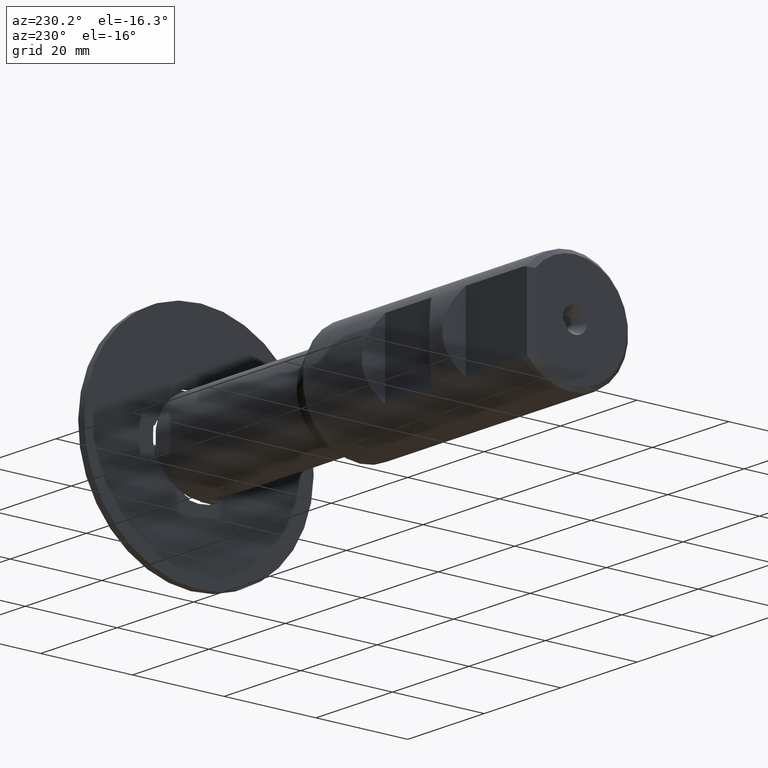
[diagram: clean part render]
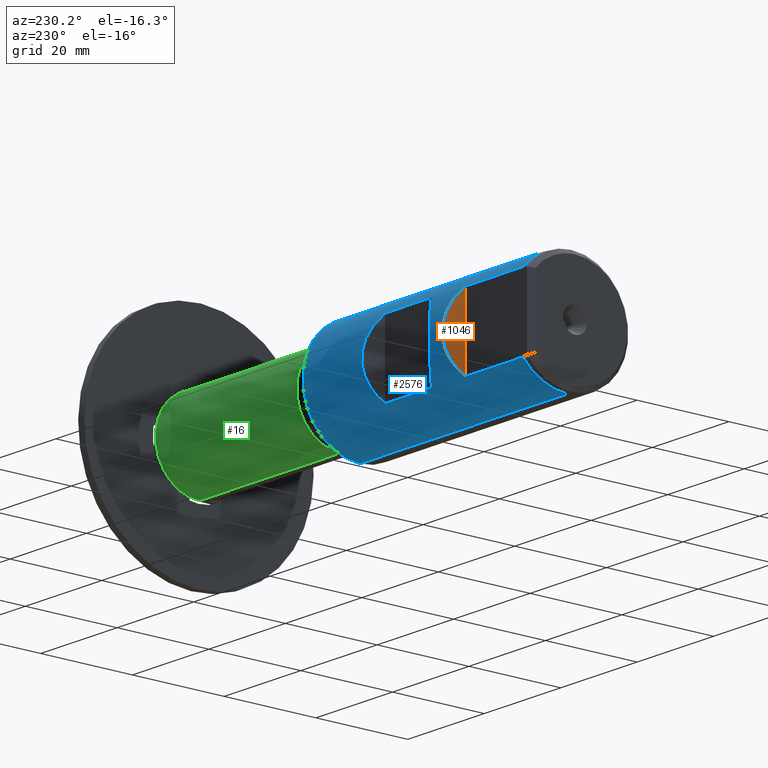
[diagram: same view with three faces highlighted in distinct colors, each labeled with its STEP entity id]
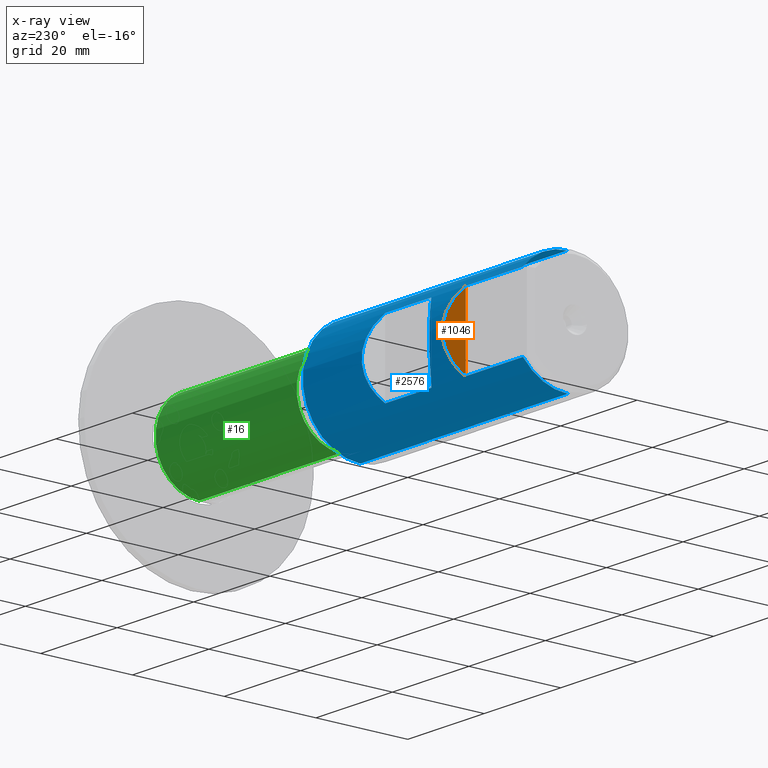
[diagram: x-ray of the same camera — body ghosted, the three highlighted faces saturated]
A machine part, auxiliary view with three faces highlighted in distinct colors.
The next image is the same camera in x-ray (body ghosted, the three faces saturated) — at least one of them is partly hidden behind the body in this view.
Their STEP definitions:

[orange] entity #1046 — the highlighted planar face has unit normal (0.7071, -0.7071, 0).
#109 = CARTESIAN_POINT ( 'NONE',  ( -82.79994865999999831, 9.700000000000004619, 7.884161337770787981 ) ) ;
#115 = DIRECTION ( 'NONE',  ( -0.0000000000000000000, -0.0000000000000000000, 1.000000000000000000 ) ) ;
#237 = FACE_OUTER_BOUND ( 'NONE', #444, .T. ) ;
#444 = EDGE_LOOP ( 'NONE', ( #2080, #3974 ) ) ;
#466 = VERTEX_POINT ( 'NONE', #1797 ) ;
#539 = CARTESIAN_POINT ( 'NONE',  ( -79.79994866000002673, 12.70000000000000462, -20.00000000000000000 ) ) ;
#628 = AXIS2_PLACEMENT_3D ( 'NONE', #539, #4159, #869 ) ;
#760 = VERTEX_POINT ( 'NONE', #997 ) ;
#869 = DIRECTION ( 'NONE',  ( 0.7071067811865445751, 0.7071067811865504593, 0.0000000000000000000 ) ) ;
#997 = CARTESIAN_POINT ( 'NONE',  ( -82.79994865999999831, 9.700000000000004619, 7.884161337770787981 ) ) ;
#1046 = ADVANCED_FACE ( 'NONE', ( #237 ), #2150, .F. ) ;
#1335 = VECTOR ( 'NONE', #115, 1000.000000000000000 ) ;
#1501 = EDGE_CURVE ( 'NONE', #760, #466, #3075, .T. ) ;
#1797 = CARTESIAN_POINT ( 'NONE',  ( -82.79994865999999831, 9.700000000000004619, -7.884161337770789757 ) ) ;
#2080 = ORIENTED_EDGE ( 'NONE', *, *, #1501, .T. ) ;
#2150 = PLANE ( 'NONE',  #628 ) ;
#3003 = LINE ( 'NONE', #3757, #1335 ) ;
#3075 =( BOUNDED_CURVE ( )  B_SPLINE_CURVE ( 3, ( #109, #4137, #3123, #3764 ),
 .UNSPECIFIED., .F., .T. ) 
 B_SPLINE_CURVE_WITH_KNOTS ( ( 4, 4 ),
 ( 2.459095336313824376, 3.824089970865762744 ),
 .UNSPECIFIED. ) 
 CURVE ( )  GEOMETRIC_REPRESENTATION_ITEM ( )  RATIONAL_B_SPLINE_CURVE ( ( 1.000000000000000000, 0.8506666666666676813, 0.8506666666666676813, 1.000000000000000000 ) ) 
 REPRESENTATION_ITEM ( '' )  );
#3087 = EDGE_CURVE ( 'NONE', #466, #760, #3003, .T. ) ;
#3123 = CARTESIAN_POINT ( 'NONE',  ( -78.90276997661447922, 13.59717868338555569, -3.089404912919587964 ) ) ;
#3757 = CARTESIAN_POINT ( 'NONE',  ( -82.79994865999999831, 9.700000000000004619, -20.00000000000000000 ) ) ;
#3764 = CARTESIAN_POINT ( 'NONE',  ( -82.79994865999999831, 9.700000000000004619, -7.884161337770789757 ) ) ;
#3974 = ORIENTED_EDGE ( 'NONE', *, *, #3087, .T. ) ;
#4137 = CARTESIAN_POINT ( 'NONE',  ( -78.90276997661447922, 13.59717868338555924, 3.089404912919578194 ) ) ;
#4159 = DIRECTION ( 'NONE',  ( 0.7071067811865504593, -0.7071067811865445751, 0.0000000000000000000 ) ) ;

[blue] entity #2576 — the highlighted cylindrical surface (partial cylindrical patch) has radius 12.5 mm, axis along (-1, -0, -0).
#57 = AXIS2_PLACEMENT_3D ( 'NONE', #325, #937, #2923 ) ;
#82 = VERTEX_POINT ( 'NONE', #3790 ) ;
#106 = VERTEX_POINT ( 'NONE', #2858 ) ;
#109 = CARTESIAN_POINT ( 'NONE',  ( -82.79994865999999831, 9.700000000000004619, 7.884161337770787981 ) ) ;
#134 = VECTOR ( 'NONE', #2599, 1000.000000000000000 ) ;
#171 = CARTESIAN_POINT ( 'NONE',  ( -29.79994865999999121, 9.700000000000004619, -7.884161337770789757 ) ) ;
#176 = ORIENTED_EDGE ( 'NONE', *, *, #1198, .F. ) ;
#206 = EDGE_CURVE ( 'NONE', #1848, #562, #4116, .T. ) ;
#210 = VERTEX_POINT ( 'NONE', #985 ) ;
#276 = EDGE_CURVE ( 'NONE', #4067, #3605, #2937, .T. ) ;
#325 = CARTESIAN_POINT ( 'NONE',  ( -97.79994865999979936, 0.0000000000000000000, 0.0000000000000000000 ) ) ;
#466 = VERTEX_POINT ( 'NONE', #1797 ) ;
#547 = ORIENTED_EDGE ( 'NONE', *, *, #206, .F. ) ;
#562 = VERTEX_POINT ( 'NONE', #1152 ) ;
#591 = CARTESIAN_POINT ( 'NONE',  ( -43.54014103886468234, 0.0000000000000000000, 0.0000000000000000000 ) ) ;
#618 = VECTOR ( 'NONE', #1151, 1000.000000000000000 ) ;
#638 = ORIENTED_EDGE ( 'NONE', *, *, #1501, .F. ) ;
#684 = DIRECTION ( 'NONE',  ( -1.000000000000000000, -0.0000000000000000000, -0.0000000000000000000 ) ) ;
#709 = ORIENTED_EDGE ( 'NONE', *, *, #1593, .F. ) ;
#760 = VERTEX_POINT ( 'NONE', #997 ) ;
#831 = DIRECTION ( 'NONE',  ( -1.000000000000000000, 0.0000000000000000000, 0.0000000000000000000 ) ) ;
#866 = DIRECTION ( 'NONE',  ( -1.000000000000000000, -0.0000000000000000000, -0.0000000000000000000 ) ) ;
#923 = CYLINDRICAL_SURFACE ( 'NONE', #2472, 12.50000000000000000 ) ;
#937 = DIRECTION ( 'NONE',  ( -1.000000000000000000, 0.0000000000000000000, 0.0000000000000000000 ) ) ;
#983 = CIRCLE ( 'NONE', #3363, 12.50000000000000000 ) ;
#985 = CARTESIAN_POINT ( 'NONE',  ( -61.74994866000000115, 9.700000000000006395, 7.884161337770787981 ) ) ;
#997 = CARTESIAN_POINT ( 'NONE',  ( -82.79994865999999831, 9.700000000000004619, 7.884161337770787981 ) ) ;
#1080 = ORIENTED_EDGE ( 'NONE', *, *, #1865, .T. ) ;
#1133 = ORIENTED_EDGE ( 'NONE', *, *, #2469, .F. ) ;
#1151 = DIRECTION ( 'NONE',  ( 1.000000000000000000, 0.0000000000000000000, 0.0000000000000000000 ) ) ;
#1152 = CARTESIAN_POINT ( 'NONE',  ( -73.84994865999999547, 9.700000000000006395, -7.884161337770787981 ) ) ;
#1166 = CARTESIAN_POINT ( 'NONE',  ( -61.74994866000000115, 9.700000000000006395, -7.884161337770787981 ) ) ;
#1169 = CARTESIAN_POINT ( 'NONE',  ( -97.79994865999979936, -1.061225583290346189E-14, -12.50000000000000000 ) ) ;
#1198 = EDGE_CURVE ( 'NONE', #3605, #106, #1679, .T. ) ;
#1209 = DIRECTION ( 'NONE',  ( 0.0000000000000000000, 0.0000000000000000000, 1.000000000000000000 ) ) ;
#1258 = CARTESIAN_POINT ( 'NONE',  ( -97.79994865999979936, 9.700000000000004619, -7.884161337770803080 ) ) ;
#1315 = VERTEX_POINT ( 'NONE', #2001 ) ;
#1501 = EDGE_CURVE ( 'NONE', #760, #466, #3075, .T. ) ;
#1593 = EDGE_CURVE ( 'NONE', #106, #760, #3372, .T. ) ;
#1622 = EDGE_CURVE ( 'NONE', #82, #4067, #983, .T. ) ;
#1679 = CIRCLE ( 'NONE', #57, 12.50000000000000000 ) ;
#1684 = LINE ( 'NONE', #2366, #2810 ) ;
#1715 = ORIENTED_EDGE ( 'NONE', *, *, #1622, .F. ) ;
#1787 = CIRCLE ( 'NONE', #3334, 12.50000000000000000 ) ;
#1797 = CARTESIAN_POINT ( 'NONE',  ( -82.79994865999999831, 9.700000000000004619, -7.884161337770789757 ) ) ;
#1825 = CARTESIAN_POINT ( 'NONE',  ( -43.54014103886468234, 0.0000000000000000000, 12.50000000000000178 ) ) ;
#1845 = EDGE_CURVE ( 'NONE', #562, #1315, #3255, .T. ) ;
#1848 = VERTEX_POINT ( 'NONE', #2290 ) ;
#1865 = EDGE_CURVE ( 'NONE', #82, #2485, #2519, .T. ) ;
#1893 = DIRECTION ( 'NONE',  ( 1.000000000000000000, -0.0000000000000000000, -0.0000000000000000000 ) ) ;
#1917 = VECTOR ( 'NONE', #1970, 1000.000000000000000 ) ;
#1970 = DIRECTION ( 'NONE',  ( -1.000000000000000000, -0.0000000000000000000, -0.0000000000000000000 ) ) ;
#2001 = CARTESIAN_POINT ( 'NONE',  ( -73.84994865999999547, 9.700000000000006395, 7.884161337770787981 ) ) ;
#2044 = ORIENTED_EDGE ( 'NONE', *, *, #2112, .F. ) ;
#2104 = FACE_BOUND ( 'NONE', #2233, .T. ) ;
#2112 = EDGE_CURVE ( 'NONE', #466, #4194, #4088, .T. ) ;
#2149 = VECTOR ( 'NONE', #2457, 1000.000000000000000 ) ;
#2205 = CARTESIAN_POINT ( 'NONE',  ( -97.79994865999979936, -1.214306433183765282E-14, 12.50000000000000000 ) ) ;
#2222 = CARTESIAN_POINT ( 'NONE',  ( -29.79994865999999121, 9.700000000000006395, -7.884161337770787981 ) ) ;
#2225 = ORIENTED_EDGE ( 'NONE', *, *, #1845, .F. ) ;
#2229 = DIRECTION ( 'NONE',  ( 0.0000000000000000000, 0.0000000000000000000, 1.000000000000000000 ) ) ;
#2233 = EDGE_LOOP ( 'NONE', ( #3918, #2225, #547, #4047 ) ) ;
#2258 = CARTESIAN_POINT ( 'NONE',  ( -73.84994865999999547, 9.700000000000006395, -7.884161337770787981 ) ) ;
#2290 = CARTESIAN_POINT ( 'NONE',  ( -61.74994866000000115, 9.700000000000006395, -7.884161337770787981 ) ) ;
#2366 = CARTESIAN_POINT ( 'NONE',  ( -29.79994865999999121, 9.700000000000006395, 7.884161337770787981 ) ) ;
#2455 = FACE_OUTER_BOUND ( 'NONE', #3341, .T. ) ;
#2457 = DIRECTION ( 'NONE',  ( -1.000000000000000000, -0.0000000000000000000, -0.0000000000000000000 ) ) ;
#2463 = CARTESIAN_POINT ( 'NONE',  ( -29.79994865999999121, -1.214306433183765282E-14, 0.0000000000000000000 ) ) ;
#2469 = EDGE_CURVE ( 'NONE', #4194, #2485, #1787, .T. ) ;
#2472 = AXIS2_PLACEMENT_3D ( 'NONE', #2463, #866, #1209 ) ;
#2485 = VERTEX_POINT ( 'NONE', #1169 ) ;
#2519 = LINE ( 'NONE', #2649, #4142 ) ;
#2576 = ADVANCED_FACE ( 'NONE', ( #2104, #2455 ), #923, .T. ) ;
#2599 = DIRECTION ( 'NONE',  ( -1.000000000000000000, -0.0000000000000000000, -0.0000000000000000000 ) ) ;
#2634 = CARTESIAN_POINT ( 'NONE',  ( -77.74712734338554299, 13.59717868338555569, -3.089404912919588408 ) ) ;
#2649 = CARTESIAN_POINT ( 'NONE',  ( -29.79994865999999121, -1.061225583290346189E-14, -12.50000000000000000 ) ) ;
#2781 = CARTESIAN_POINT ( 'NONE',  ( -57.85276997661446785, 13.59717868338555924, 3.089404912919579527 ) ) ;
#2810 = VECTOR ( 'NONE', #3436, 1000.000000000000000 ) ;
#2834 = CARTESIAN_POINT ( 'NONE',  ( -61.74994866000000115, 9.700000000000006395, 7.884161337770787981 ) ) ;
#2858 = CARTESIAN_POINT ( 'NONE',  ( -97.79994865999979936, 9.700000000000004619, 7.884161337770801303 ) ) ;
#2871 = EDGE_CURVE ( 'NONE', #1315, #210, #1684, .T. ) ;
#2923 = DIRECTION ( 'NONE',  ( 0.0000000000000000000, 0.0000000000000000000, -1.000000000000000000 ) ) ;
#2937 = LINE ( 'NONE', #3572, #1917 ) ;
#2943 =( BOUNDED_CURVE ( )  B_SPLINE_CURVE ( 3, ( #2834, #2781, #3796, #1166 ),
 .UNSPECIFIED., .F., .T. ) 
 B_SPLINE_CURVE_WITH_KNOTS ( ( 4, 4 ),
 ( 2.459095336313824376, 3.824089970865762300 ),
 .UNSPECIFIED. ) 
 CURVE ( )  GEOMETRIC_REPRESENTATION_ITEM ( )  RATIONAL_B_SPLINE_CURVE ( ( 1.000000000000000000, 0.8506666666666677923, 0.8506666666666677923, 1.000000000000000000 ) ) 
 REPRESENTATION_ITEM ( '' )  );
#3075 =( BOUNDED_CURVE ( )  B_SPLINE_CURVE ( 3, ( #109, #4137, #3123, #3764 ),
 .UNSPECIFIED., .F., .T. ) 
 B_SPLINE_CURVE_WITH_KNOTS ( ( 4, 4 ),
 ( 2.459095336313824376, 3.824089970865762744 ),
 .UNSPECIFIED. ) 
 CURVE ( )  GEOMETRIC_REPRESENTATION_ITEM ( )  RATIONAL_B_SPLINE_CURVE ( ( 1.000000000000000000, 0.8506666666666676813, 0.8506666666666676813, 1.000000000000000000 ) ) 
 REPRESENTATION_ITEM ( '' )  );
#3113 = DIRECTION ( 'NONE',  ( 0.0000000000000000000, 7.105427357601001859E-15, -1.000000000000000000 ) ) ;
#3123 = CARTESIAN_POINT ( 'NONE',  ( -78.90276997661447922, 13.59717868338555569, -3.089404912919587964 ) ) ;
#3255 =( BOUNDED_CURVE ( )  B_SPLINE_CURVE ( 3, ( #2258, #2634, #3941, #3625 ),
 .UNSPECIFIED., .F., .F. ) 
 B_SPLINE_CURVE_WITH_KNOTS ( ( 4, 4 ),
 ( 5.600687989903616604, 6.965682624455555860 ),
 .UNSPECIFIED. ) 
 CURVE ( )  GEOMETRIC_REPRESENTATION_ITEM ( )  RATIONAL_B_SPLINE_CURVE ( ( 1.000000000000000000, 0.8506666666666676813, 0.8506666666666676813, 1.000000000000000000 ) ) 
 REPRESENTATION_ITEM ( '' )  );
#3298 = ORIENTED_EDGE ( 'NONE', *, *, #276, .F. ) ;
#3334 = AXIS2_PLACEMENT_3D ( 'NONE', #3430, #831, #3113 ) ;
#3341 = EDGE_LOOP ( 'NONE', ( #1715, #1080, #1133, #2044, #638, #709, #176, #3298 ) ) ;
#3363 = AXIS2_PLACEMENT_3D ( 'NONE', #591, #1893, #2229 ) ;
#3372 = LINE ( 'NONE', #3486, #618 ) ;
#3430 = CARTESIAN_POINT ( 'NONE',  ( -97.79994865999979936, 0.0000000000000000000, 0.0000000000000000000 ) ) ;
#3436 = DIRECTION ( 'NONE',  ( 1.000000000000000000, 0.0000000000000000000, 0.0000000000000000000 ) ) ;
#3486 = CARTESIAN_POINT ( 'NONE',  ( -29.79994865999999121, 9.700000000000004619, 7.884161337770789757 ) ) ;
#3572 = CARTESIAN_POINT ( 'NONE',  ( -29.79994865999999121, -1.214306433183765282E-14, 12.50000000000000000 ) ) ;
#3605 = VERTEX_POINT ( 'NONE', #2205 ) ;
#3625 = CARTESIAN_POINT ( 'NONE',  ( -73.84994865999999547, 9.700000000000006395, 7.884161337770787981 ) ) ;
#3764 = CARTESIAN_POINT ( 'NONE',  ( -82.79994865999999831, 9.700000000000004619, -7.884161337770789757 ) ) ;
#3790 = CARTESIAN_POINT ( 'NONE',  ( -43.54014103886468234, 1.530808498934191916E-15, -12.50000000000000178 ) ) ;
#3796 = CARTESIAN_POINT ( 'NONE',  ( -57.85276997661446785, 13.59717868338555924, -3.089404912919581747 ) ) ;
#3918 = ORIENTED_EDGE ( 'NONE', *, *, #2871, .F. ) ;
#3941 = CARTESIAN_POINT ( 'NONE',  ( -77.74712734338554299, 13.59717868338556102, 3.089404912919586188 ) ) ;
#4047 = ORIENTED_EDGE ( 'NONE', *, *, #4086, .F. ) ;
#4067 = VERTEX_POINT ( 'NONE', #1825 ) ;
#4086 = EDGE_CURVE ( 'NONE', #210, #1848, #2943, .T. ) ;
#4088 = LINE ( 'NONE', #171, #2149 ) ;
#4116 = LINE ( 'NONE', #2222, #134 ) ;
#4137 = CARTESIAN_POINT ( 'NONE',  ( -78.90276997661447922, 13.59717868338555924, 3.089404912919578194 ) ) ;
#4142 = VECTOR ( 'NONE', #684, 1000.000000000000000 ) ;
#4194 = VERTEX_POINT ( 'NONE', #1258 ) ;

[green] entity #16 — the highlighted cylindrical surface (partial cylindrical patch) has radius 9.5 mm, axis along (1, 0, 0).
#16 = ADVANCED_FACE ( 'NONE', ( #1868 ), #1771, .T. ) ;
#193 = CARTESIAN_POINT ( 'NONE',  ( -1.399999999999999911, 1.163414459189984894E-15, -9.499999999999994671 ) ) ;
#255 = EDGE_CURVE ( 'NONE', #2788, #2140, #3811, .T. ) ;
#364 = AXIS2_PLACEMENT_3D ( 'NONE', #2591, #4215, #2260 ) ;
#371 = CARTESIAN_POINT ( 'NONE',  ( -38.34398861615805032, 0.0000000000000000000, 9.499999999999994671 ) ) ;
#501 = DIRECTION ( 'NONE',  ( 1.000000000000000000, -0.0000000000000000000, -0.0000000000000000000 ) ) ;
#819 = CARTESIAN_POINT ( 'NONE',  ( 0.0000000000000000000, 0.0000000000000000000, -9.499999999999994671 ) ) ;
#860 = ORIENTED_EDGE ( 'NONE', *, *, #3069, .T. ) ;
#950 = CARTESIAN_POINT ( 'NONE',  ( -38.34398861615805032, 1.347111479062088207E-15, -9.499999999999994671 ) ) ;
#1013 = EDGE_LOOP ( 'NONE', ( #860, #1433, #3143, #2445 ) ) ;
#1286 = VECTOR ( 'NONE', #3515, 1000.000000000000000 ) ;
#1307 = DIRECTION ( 'NONE',  ( 1.000000000000000000, -0.0000000000000000000, -0.0000000000000000000 ) ) ;
#1430 = AXIS2_PLACEMENT_3D ( 'NONE', #1461, #501, #2778 ) ;
#1433 = ORIENTED_EDGE ( 'NONE', *, *, #255, .T. ) ;
#1461 = CARTESIAN_POINT ( 'NONE',  ( -38.34398861615805032, 0.0000000000000000000, 0.0000000000000000000 ) ) ;
#1564 = VERTEX_POINT ( 'NONE', #193 ) ;
#1685 = CIRCLE ( 'NONE', #364, 9.499999999999994671 ) ;
#1762 = CARTESIAN_POINT ( 'NONE',  ( 0.0000000000000000000, 0.0000000000000000000, 0.0000000000000000000 ) ) ;
#1771 = CYLINDRICAL_SURFACE ( 'NONE', #2092, 9.499999999999994671 ) ;
#1868 = FACE_OUTER_BOUND ( 'NONE', #1013, .T. ) ;
#1943 = LINE ( 'NONE', #819, #1286 ) ;
#2092 = AXIS2_PLACEMENT_3D ( 'NONE', #1762, #2822, #2495 ) ;
#2140 = VERTEX_POINT ( 'NONE', #3434 ) ;
#2168 = EDGE_CURVE ( 'NONE', #3347, #1564, #1943, .T. ) ;
#2260 = DIRECTION ( 'NONE',  ( 0.0000000000000000000, 0.0000000000000000000, -1.000000000000000000 ) ) ;
#2445 = ORIENTED_EDGE ( 'NONE', *, *, #2168, .F. ) ;
#2495 = DIRECTION ( 'NONE',  ( 0.0000000000000000000, 0.0000000000000000000, -1.000000000000000000 ) ) ;
#2591 = CARTESIAN_POINT ( 'NONE',  ( -1.399999999999999911, 0.0000000000000000000, 0.0000000000000000000 ) ) ;
#2615 = EDGE_CURVE ( 'NONE', #1564, #2140, #1685, .T. ) ;
#2778 = DIRECTION ( 'NONE',  ( 0.0000000000000000000, 0.0000000000000000000, -1.000000000000000000 ) ) ;
#2788 = VERTEX_POINT ( 'NONE', #371 ) ;
#2822 = DIRECTION ( 'NONE',  ( 1.000000000000000000, -0.0000000000000000000, -0.0000000000000000000 ) ) ;
#2883 = VECTOR ( 'NONE', #1307, 1000.000000000000000 ) ;
#3069 = EDGE_CURVE ( 'NONE', #3347, #2788, #3409, .T. ) ;
#3143 = ORIENTED_EDGE ( 'NONE', *, *, #2615, .F. ) ;
#3234 = CARTESIAN_POINT ( 'NONE',  ( 0.0000000000000000000, 1.163414459189984894E-15, 9.499999999999994671 ) ) ;
#3347 = VERTEX_POINT ( 'NONE', #950 ) ;
#3409 = CIRCLE ( 'NONE', #1430, 9.499999999999994671 ) ;
#3434 = CARTESIAN_POINT ( 'NONE',  ( -1.399999999999999911, 0.0000000000000000000, 9.499999999999994671 ) ) ;
#3515 = DIRECTION ( 'NONE',  ( 1.000000000000000000, -0.0000000000000000000, -0.0000000000000000000 ) ) ;
#3811 = LINE ( 'NONE', #3234, #2883 ) ;
#4215 = DIRECTION ( 'NONE',  ( 1.000000000000000000, -0.0000000000000000000, -0.0000000000000000000 ) ) ;